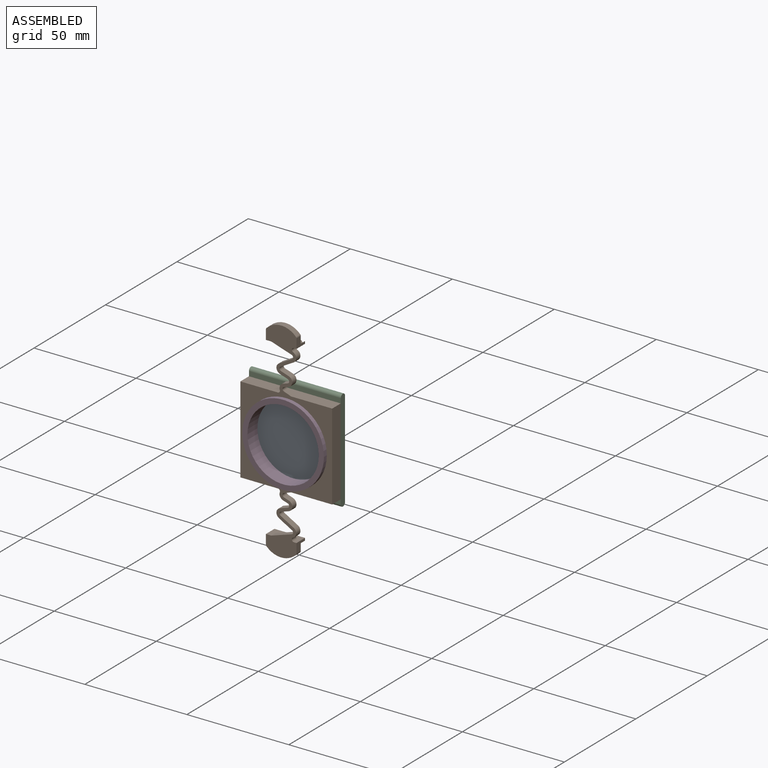
[diagram: assembled view]
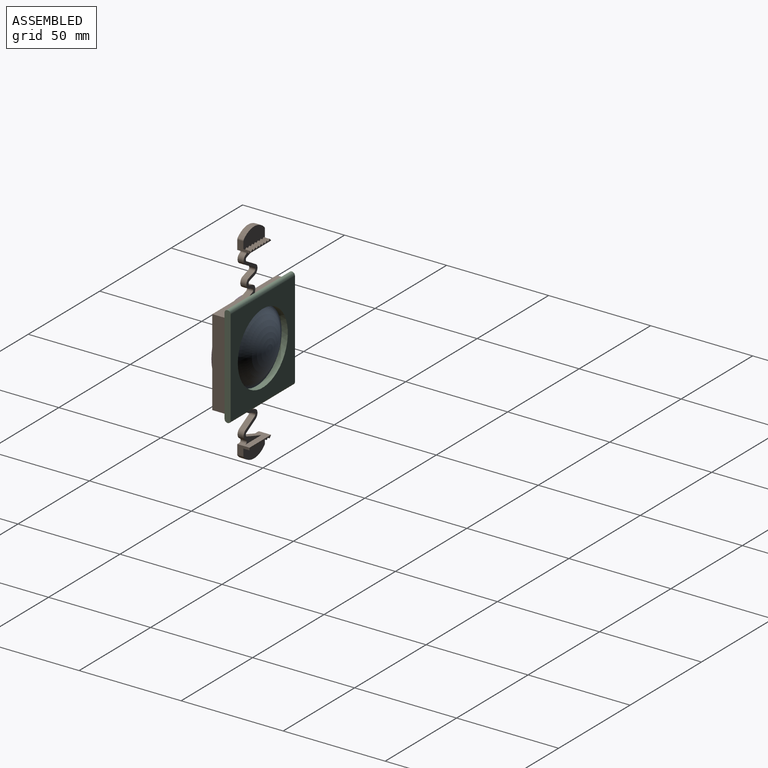
[diagram: assembled view, second angle]
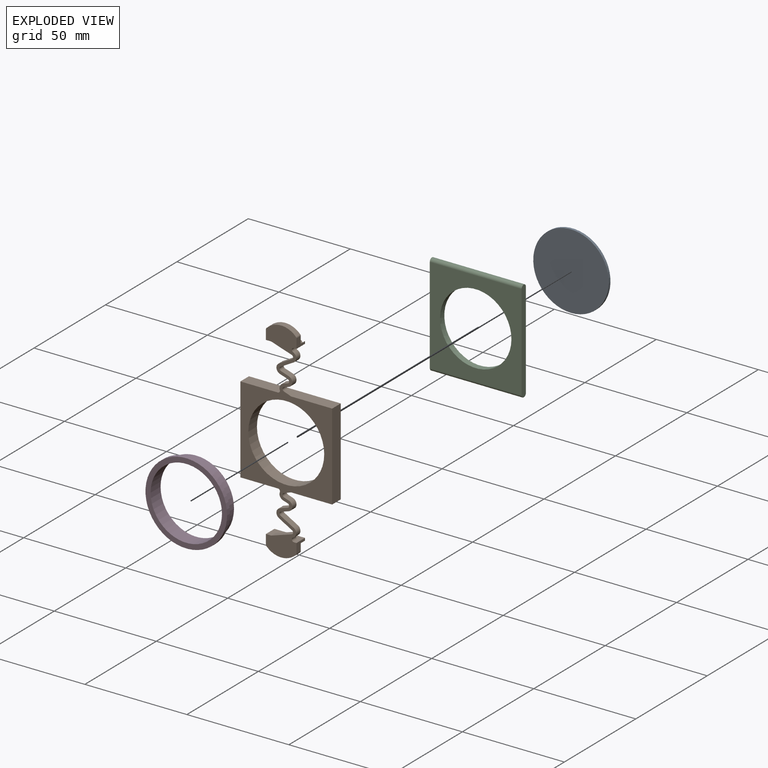
[diagram: exploded view]
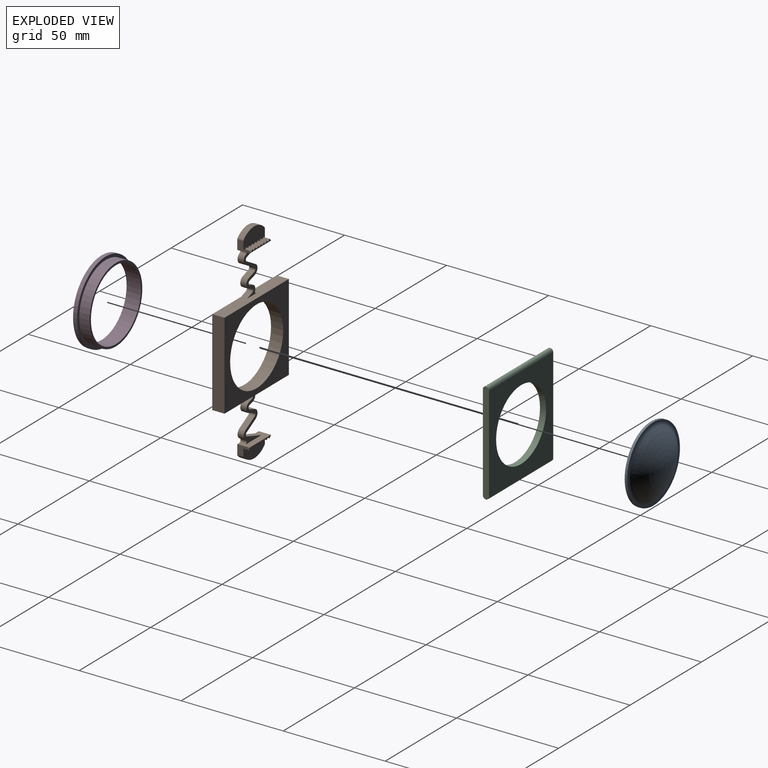
[diagram: exploded view, second angle]
ASSEMBLY  parts=4 mates=4
PART A: 5 faces, bbox 37.9x7.5x37.9 mm
  f0: plane 37x37mm, normal (0,1,0), area 1075.2mm2, adj f1
  f1: cylinder r=18.5mm len=37mm, axis (0,1,0), area 139.5mm2, adj f0,f2
  f2: plane 37x37mm, normal (0,-1,0), area 111.3mm2, adj f1,f3
  f3: torus R=17.52mm, axis (0,1,0), area 181mm2, adj f2,f4
  f4: sphere r=25mm, area 899.6mm2, adj f3
PART B: 95 faces, bbox 45x6x102.8 mm
  f0: plane 42.5x6mm, normal (1,0,0), area 255mm2, adj f5,f6,f7,f94
  f1: plane 42.5x6mm, normal (-1,0,0), area 255mm2, adj f5,f6,f7,f94
  f2: plane 21.75x12.39mm, normal (0,1,0), area 66.4mm2, adj f4,f5,f26,f27,f28,f29,f30,f31
  f3: plane 15x8.19mm, normal (0,1,0), area 99.7mm2, adj f43,f44,f45,f46,f47,f54,f55,f56
  f4: plane 9.89x3.21mm, normal (-0.31,0,0.95), area 31.2mm2, adj f2,f7,f32,f86
  f5: plane 45x6mm, normal (0,0,-1), area 250.1mm2, adj f0,f1,f2,f7,f90,f91,f94
  f6: plane 45x6mm, normal (0,0,1), area 250.1mm2, adj f0,f1,f7,f25,f92,f93,f94
  f7: plane 102.77x45mm, normal (0,-1,0), area 1178.7mm2, adj f0,f1,f4,f5,f6,f8,f9,f10
  f8: cylinder r=18.6mm len=37.2mm, axis (0,-1,0), area 701.2mm2, adj f7,f94
  f9: plane 3.34x3mm, normal (0.34,0,0.94), area 10.6mm2, adj f7,f10,f25,f92
  f10: cylinder r=1mm len=3mm, axis (0,-1,0), area 7.4mm2, adj f7,f9,f11,f25
  f11: plane 3x2.31mm, normal (0.31,0,-0.95), area 7.3mm2, adj f7,f10,f12,f25
  f12: cylinder r=2.5mm len=4.76mm, axis (0,-1,0), area 18.8mm2, adj f7,f11,f13,f25
  f13: plane 3.82x3mm, normal (0.31,0,0.95), area 12.1mm2, adj f7,f12,f14,f25
  f14: cylinder r=1mm len=3mm, axis (0,-1,0), area 6.9mm2, adj f7,f13,f15,f25
  f15: plane 6.39x3.63mm, normal (0.49,0,-0.87), area 22.1mm2, adj f7,f14,f16,f25
  f16: cylinder r=2.5mm len=4.47mm, axis (0,-1,0), area 16.6mm2, adj f7,f15,f25,f88
  f17: plane 9.89x3.21mm, normal (-0.31,0,-0.95), area 31.2mm2, adj f7,f18,f25,f89
  f18: cylinder r=1mm len=3mm, axis (0,-1,0), area 6.9mm2, adj f7,f17,f19,f25
  f19: plane 6.39x3.63mm, normal (-0.49,0,0.87), area 22.1mm2, adj f7,f18,f20,f25
  f20: cylinder r=2.5mm len=4.55mm, axis (0,-1,0), area 17.3mm2, adj f7,f19,f21,f25
  f21: plane 3.82x3mm, normal (-0.31,0,-0.95), area 12.1mm2, adj f7,f20,f22,f25
  f22: cylinder r=1mm len=3mm, axis (0,-1,0), area 7.5mm2, adj f7,f21,f23,f25
  f23: plane 3x2.31mm, normal (-0.31,0,0.95), area 7.3mm2, adj f7,f22,f24,f25
  f24: cylinder r=2.5mm len=3.24mm, axis (0,-1,0), area 12.1mm2, adj f7,f23,f25,f93
  f25: plane 21.75x12.39mm, normal (0,1,0), area 66.4mm2, adj f6,f9,f10,f11,f12,f13,f14,f15
  f26: cylinder r=2.5mm len=3.24mm, axis (0,-1,0), area 12.1mm2, adj f2,f7,f27,f90
  f27: plane 3x2.31mm, normal (-0.31,0,-0.95), area 7.3mm2, adj f2,f7,f26,f28
  f28: cylinder r=1mm len=3mm, axis (0,-1,0), area 7.5mm2, adj f2,f7,f27,f29
  f29: plane 3.82x3mm, normal (-0.31,0,0.95), area 12.1mm2, adj f2,f7,f28,f30
  f30: cylinder r=2.5mm len=4.55mm, axis (0,-1,0), area 17.3mm2, adj f2,f7,f29,f31
  f31: plane 6.39x3.63mm, normal (-0.49,0,-0.87), area 22.1mm2, adj f2,f7,f30,f32
  f32: cylinder r=1mm len=3mm, axis (0,-1,0), area 6.9mm2, adj f2,f4,f7,f31
  f33: cylinder r=2.5mm len=4.47mm, axis (0,-1,0), area 16.6mm2, adj f2,f7,f34,f87
  f34: plane 6.39x3.63mm, normal (0.49,0,0.87), area 22.1mm2, adj f2,f7,f33,f35
  f35: cylinder r=1mm len=3mm, axis (0,-1,0), area 6.9mm2, adj f2,f7,f34,f36
  f36: plane 3.82x3mm, normal (0.31,0,-0.95), area 12.1mm2, adj f2,f7,f35,f37
  f37: cylinder r=2.5mm len=4.76mm, axis (0,-1,0), area 18.8mm2, adj f2,f7,f36,f38
  f38: plane 3x2.31mm, normal (0.31,0,0.95), area 7.3mm2, adj f2,f7,f37,f39
  f39: cylinder r=1mm len=3mm, axis (0,-1,0), area 7.4mm2, adj f2,f7,f38,f40
  f40: plane 3.34x3mm, normal (0.34,0,-0.94), area 10.6mm2, adj f2,f7,f39,f91
  f41: plane 15x8.19mm, normal (0,1,0), area 99.7mm2, adj f49,f50,f51,f52,f53,f70,f71,f72
  f42: plane 15x6mm, normal (0,0,-1), area 56.2mm2, adj f7,f25,f43,f47,f69,f88,f89
  f43: plane 6x4.61mm, normal (1,0,0), area 17.4mm2, adj f3,f7,f42,f44,f68,f69
  f44: cylinder r=1mm len=3mm, axis (0,-1,0), area 2.3mm2, adj f3,f7,f43,f45
  f45: cylinder r=10mm len=14.44mm, axis (0,-1,0), area 48.4mm2, adj f3,f7,f44,f46
  f46: cylinder r=1mm len=3mm, axis (0,-1,0), area 2.3mm2, adj f3,f7,f45,f47
  f47: plane 6x4.61mm, normal (-1,0,0), area 14.4mm2, adj f3,f7,f42,f46,f54,f69
  f48: plane 15x6mm, normal (0,0,1), area 56.2mm2, adj f2,f7,f49,f50,f85,f86,f87
  f49: plane 6x4.61mm, normal (1,0,0), area 17.4mm2, adj f7,f41,f48,f53,f71,f85
  f50: plane 6x4.61mm, normal (-1,0,0), area 14.4mm2, adj f7,f41,f48,f51,f70,f85
  f51: cylinder r=1mm len=3mm, axis (0,-1,0), area 2.3mm2, adj f7,f41,f50,f52
  f52: cylinder r=10mm len=14.44mm, axis (0,-1,0), area 48.4mm2, adj f7,f41,f51,f53
  f53: cylinder r=1mm len=3mm, axis (0,-1,0), area 2.3mm2, adj f7,f41,f49,f52
  f54: plane 3x1mm, normal (-0.71,0,0.71), area 4.2mm2, adj f3,f47,f55,f69
  f55: plane 3x1mm, normal (0.71,0,0.71), area 4.2mm2, adj f3,f54,f56,f69
  f56: plane 3x1mm, normal (-0.71,0,0.71), area 4.2mm2, adj f3,f55,f57,f69
  f57: plane 3x1mm, normal (0.71,0,0.71), area 4.2mm2, adj f3,f56,f58,f69
  f58: plane 3x1mm, normal (-0.71,0,0.71), area 4.2mm2, adj f3,f57,f59,f69
  f59: plane 3x1mm, normal (0.71,0,0.71), area 4.2mm2, adj f3,f58,f60,f69
  f60: plane 3x1mm, normal (-0.71,0,0.71), area 4.2mm2, adj f3,f59,f61,f69
  f61: plane 3x1mm, normal (0.71,0,0.71), area 4.2mm2, adj f3,f60,f62,f69
  f62: plane 3x1mm, normal (-0.71,0,0.71), area 4.2mm2, adj f3,f61,f63,f69
  f63: plane 3x1mm, normal (0.71,0,0.71), area 4.2mm2, adj f3,f62,f64,f69
  f64: plane 3x1mm, normal (-0.71,0,0.71), area 4.2mm2, adj f3,f63,f65,f69
  f65: plane 3x1mm, normal (0.71,0,0.71), area 4.2mm2, adj f3,f64,f66,f69
  f66: plane 3x1mm, normal (-0.71,0,0.71), area 4.2mm2, adj f3,f65,f67,f69
  f67: plane 3x1mm, normal (0.71,0,0.71), area 4.2mm2, adj f3,f66,f68,f69
  f68: plane 3x1mm, normal (-0.71,0,0.71), area 4.2mm2, adj f3,f43,f67,f69
  f69: plane 15x1.2mm, normal (0,1,0), area 10.5mm2, adj f42,f43,f47,f54,f55,f56,f57,f58
  f70: plane 3x1mm, normal (-0.71,0,-0.71), area 4.2mm2, adj f41,f50,f84,f85
  f71: plane 3x1mm, normal (-0.71,0,-0.71), area 4.2mm2, adj f41,f49,f72,f85
  f72: plane 3x1mm, normal (0.71,0,-0.71), area 4.2mm2, adj f41,f71,f73,f85
  f73: plane 3x1mm, normal (-0.71,0,-0.71), area 4.2mm2, adj f41,f72,f74,f85
  f74: plane 3x1mm, normal (0.71,0,-0.71), area 4.2mm2, adj f41,f73,f75,f85
  f75: plane 3x1mm, normal (-0.71,0,-0.71), area 4.2mm2, adj f41,f74,f76,f85
  f76: plane 3x1mm, normal (0.71,0,-0.71), area 4.2mm2, adj f41,f75,f77,f85
  f77: plane 3x1mm, normal (-0.71,0,-0.71), area 4.2mm2, adj f41,f76,f78,f85
  f78: plane 3x1mm, normal (0.71,0,-0.71), area 4.2mm2, adj f41,f77,f79,f85
  f79: plane 3x1mm, normal (-0.71,0,-0.71), area 4.2mm2, adj f41,f78,f80,f85
  f80: plane 3x1mm, normal (0.71,0,-0.71), area 4.2mm2, adj f41,f79,f81,f85
  f81: plane 3x1mm, normal (-0.71,0,-0.71), area 4.2mm2, adj f41,f80,f82,f85
  f82: plane 3x1mm, normal (0.71,0,-0.71), area 4.2mm2, adj f41,f81,f83,f85
  f83: plane 3x1mm, normal (-0.71,0,-0.71), area 4.2mm2, adj f41,f82,f84,f85
  f84: plane 3x1mm, normal (0.71,0,-0.71), area 4.2mm2, adj f41,f70,f83,f85
  f85: plane 15x1.2mm, normal (0,1,0), area 10.5mm2, adj f48,f49,f50,f70,f71,f72,f73,f74
  f86: cylinder r=1mm len=3mm, axis (0,-1,0), area 0.9mm2, adj f2,f4,f7,f48
  f87: cylinder r=1mm len=3mm, axis (0,-1,0), area 8.2mm2, adj f2,f7,f33,f48
  f88: cylinder r=1mm len=3mm, axis (0,-1,0), area 8.2mm2, adj f7,f16,f25,f42
  f89: cylinder r=1mm len=3mm, axis (0,1,0), area 0.9mm2, adj f7,f17,f25,f42
  f90: cylinder r=1mm len=3mm, axis (0,-1,0), area 5.8mm2, adj f2,f5,f7,f26
  f91: cylinder r=1mm len=3mm, axis (0,1,0), area 1mm2, adj f2,f5,f7,f40
  f92: cylinder r=1mm len=3mm, axis (0,-1,0), area 1mm2, adj f6,f7,f9,f25
  f93: cylinder r=1mm len=3mm, axis (0,-1,0), area 5.8mm2, adj f6,f7,f24,f25
  f94: plane 45x42.5mm, normal (0,1,0), area 825.6mm2, adj f0,f1,f5,f6,f8
PART C: 7 faces, bbox 45x3x50 mm
  f0: plane 50x3mm, normal (1,0,0), area 148.1mm2, adj f2,f3,f5,f6
  f1: plane 50x3mm, normal (-1,0,0), area 148.1mm2, adj f2,f3,f5,f6
  f2: plane 47x45mm, normal (0,-1,0), area 1152.9mm2, adj f0,f1,f4,f5,f6
  f3: plane 47x45mm, normal (0,1,0), area 1152.9mm2, adj f0,f1,f4,f5,f6
  f4: cylinder r=17.5mm len=35mm, axis (0,-1,0), area 329.9mm2, adj f2,f3
  f5: cylinder r=1.5mm len=45mm, axis (-1,0,0), area 212.1mm2, adj f0,f1,f2,f3
  f6: cylinder r=1.5mm len=45mm, axis (-1,0,0), area 212.1mm2, adj f0,f1,f2,f3
PART D: 6 faces, bbox 40x7x40 mm
  f0: cylinder r=17.5mm len=35mm, axis (0,1,0), area 769.7mm2, adj f2,f4
  f1: cylinder r=18.5mm len=37mm, axis (0,1,0), area 581.2mm2, adj f2,f5
  f2: plane 37x37mm, normal (0,1,0), area 113.1mm2, adj f0,f1
  f3: cylinder r=20mm len=40mm, axis (0,1,0), area 251.3mm2, adj f4,f5
  f4: plane 40x40mm, normal (0,-1,0), area 294.5mm2, adj f0,f3
  f5: plane 40x40mm, normal (0,1,0), area 181.4mm2, adj f1,f3
PLACE A rot(axis=(1,0,0),180deg) t=(0,-4,0)mm
PLACE B at identity fixed
PLACE C at identity
PLACE D t=(0,-4.2,0)mm
MATE cylindrical A.f1 <-> B.f8  axis (0,1,0) through (0,-3,0)mm
MATE planar D.f0 <-> A.f1  axis (0,1,0) through (0,-4.2,0)mm
MATE cylindrical B.f8 <-> C.f4  axis (0,1,0) through (0,-3,0)mm
MATE cylindrical D.f0 <-> A.f1  axis (0,1,0) through (0,-4.2,0)mm
